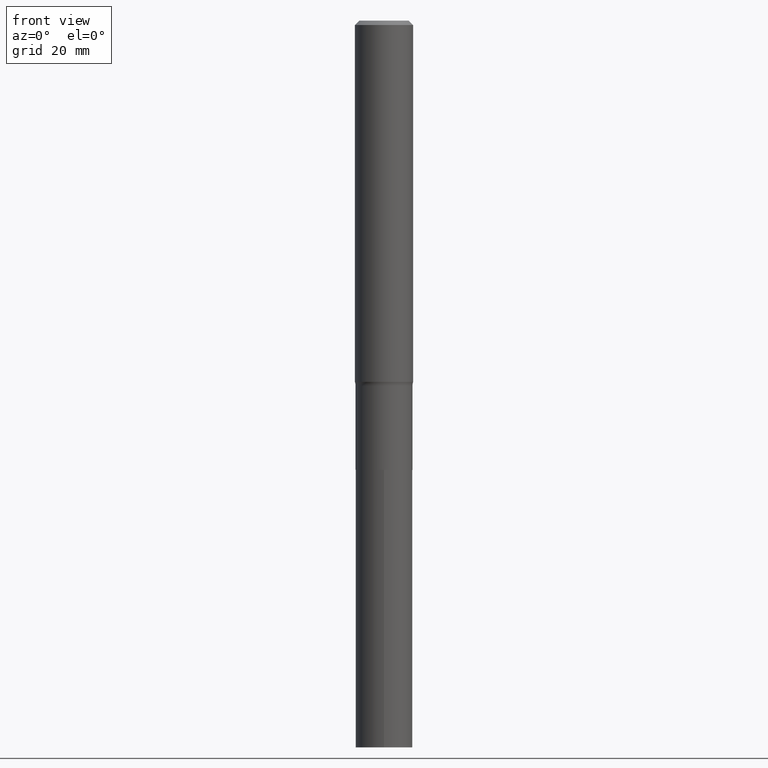
[diagram: clean part render]
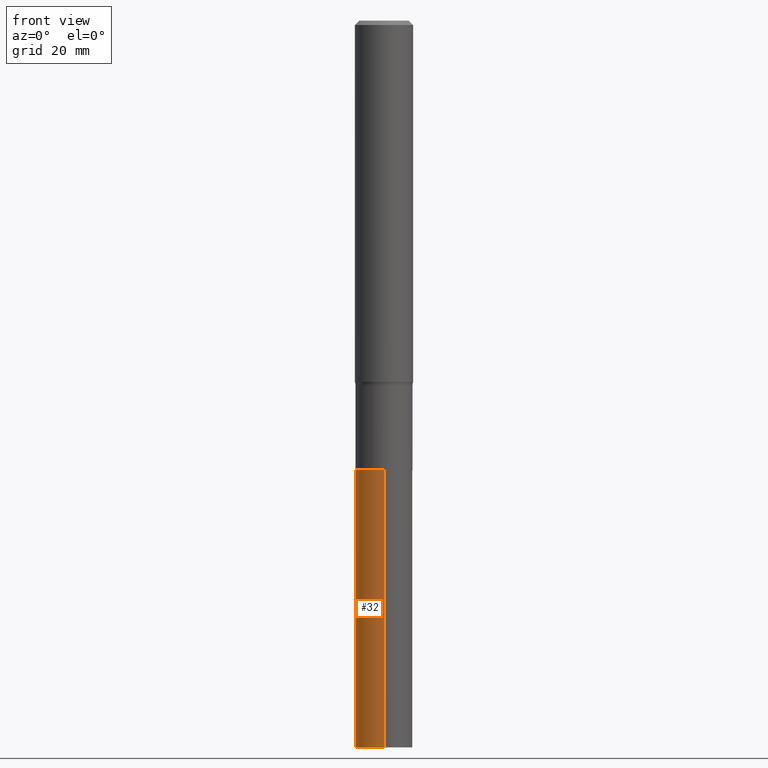
[diagram: same view with one face highlighted and labeled with its STEP entity id]
A machine part, front view. The second image highlights one B-rep face of the part: STEP entity #32.
In plain terms, the highlighted cylindrical surface (edge-blend (fillet) strip) has radius 4.8997 mm, axis along (-0, 0, 1).
Its self-contained STEP definition (entity closure, byte-faithful):
#12 = DIRECTION ( 'NONE',  ( -2.445466196410267500E-29, 3.491485076189297312E-15, 1.000000000000000000 ) ) ;
#32 = ADVANCED_FACE ( 'NONE', ( #115 ), #120, .T. ) ;
#36 = VECTOR ( 'NONE', #391, 39.37007874015748143 ) ;
#52 = ORIENTED_EDGE ( 'NONE', *, *, #290, .F. ) ;
#78 = AXIS2_PLACEMENT_3D ( 'NONE', #454, #236, #137 ) ;
#88 = DIRECTION ( 'NONE',  ( -6.982962677686265133E-15, -1.000000000000000000, 2.832398127179122126E-15 ) ) ;
#91 = CARTESIAN_POINT ( 'NONE',  ( -1.347013500525606121E-15, -0.1929000000000105908, -3.042299999999998672 ) ) ;
#97 = EDGE_CURVE ( 'NONE', #264, #194, #311, .T. ) ;
#99 = DIRECTION ( 'NONE',  ( -6.982962677686265133E-15, -1.000000000000000000, 5.664796254358244252E-15 ) ) ;
#108 = CARTESIAN_POINT ( 'NONE',  ( 1.370636937281307327E-15, 0.1928999999999893578, -3.042300000000000004 ) ) ;
#115 = FACE_OUTER_BOUND ( 'NONE', #229, .T. ) ;
#120 = CYLINDRICAL_SURFACE ( 'NONE', #282, 0.1928999999999999881 ) ;
#137 = DIRECTION ( 'NONE',  ( -6.982962677686265133E-15, -1.000000000000000000, 2.832398127179122126E-15 ) ) ;
#146 = EDGE_CURVE ( 'NONE', #405, #264, #362, .T. ) ;
#161 = CARTESIAN_POINT ( 'NONE',  ( 1.370636937281330401E-15, 0.1928999999999828074, -4.921300000000002228 ) ) ;
#194 = VERTEX_POINT ( 'NONE', #246 ) ;
#196 = DIRECTION ( 'NONE',  ( -2.445466196410267781E-29, 3.491485076189296917E-15, 1.000000000000000000 ) ) ;
#204 = VECTOR ( 'NONE', #12, 39.37007874015748143 ) ;
#229 = EDGE_LOOP ( 'NONE', ( #52, #388, #366, #300 ) ) ;
#236 = DIRECTION ( 'NONE',  ( -2.445466196410267781E-29, 3.491485076189296917E-15, 1.000000000000000000 ) ) ;
#246 = CARTESIAN_POINT ( 'NONE',  ( -1.347013500525606121E-15, -0.1929000000000105908, -3.042299999999998672 ) ) ;
#256 = AXIS2_PLACEMENT_3D ( 'NONE', #375, #412, #99 ) ;
#264 = VERTEX_POINT ( 'NONE', #434 ) ;
#282 = AXIS2_PLACEMENT_3D ( 'NONE', #409, #196, #88 ) ;
#290 = EDGE_CURVE ( 'NONE', #405, #410, #413, .T. ) ;
#300 = ORIENTED_EDGE ( 'NONE', *, *, #443, .F. ) ;
#311 = LINE ( 'NONE', #91, #204 ) ;
#362 = CIRCLE ( 'NONE', #256, 0.1928999999999999881 ) ;
#366 = ORIENTED_EDGE ( 'NONE', *, *, #97, .T. ) ;
#375 = CARTESIAN_POINT ( 'NONE',  ( 1.203488073211193522E-28, -1.718263413532219501E-14, -4.921300000000000452 ) ) ;
#386 = CARTESIAN_POINT ( 'NONE',  ( 1.370636937281353870E-15, 0.1928999999999893855, -3.042300000000000004 ) ) ;
#388 = ORIENTED_EDGE ( 'NONE', *, *, #146, .T. ) ;
#391 = DIRECTION ( 'NONE',  ( -2.445466196410267500E-29, 3.491485076189297312E-15, 1.000000000000000000 ) ) ;
#405 = VERTEX_POINT ( 'NONE', #161 ) ;
#409 = CARTESIAN_POINT ( 'NONE',  ( 7.439849749057039047E-29, -1.062213367716249950E-14, -3.042299999999999560 ) ) ;
#410 = VERTEX_POINT ( 'NONE', #386 ) ;
#412 = DIRECTION ( 'NONE',  ( -2.445466196410267781E-29, 3.491485076189296917E-15, 1.000000000000000000 ) ) ;
#413 = LINE ( 'NONE', #108, #36 ) ;
#434 = CARTESIAN_POINT ( 'NONE',  ( -1.347013500525560170E-15, -0.1929000000000171411, -4.921299999999999564 ) ) ;
#443 = EDGE_CURVE ( 'NONE', #410, #194, #446, .T. ) ;
#446 = CIRCLE ( 'NONE', #78, 0.1928999999999999881 ) ;
#454 = CARTESIAN_POINT ( 'NONE',  ( 7.439849749057039047E-29, -1.062213367716249950E-14, -3.042299999999999560 ) ) ;